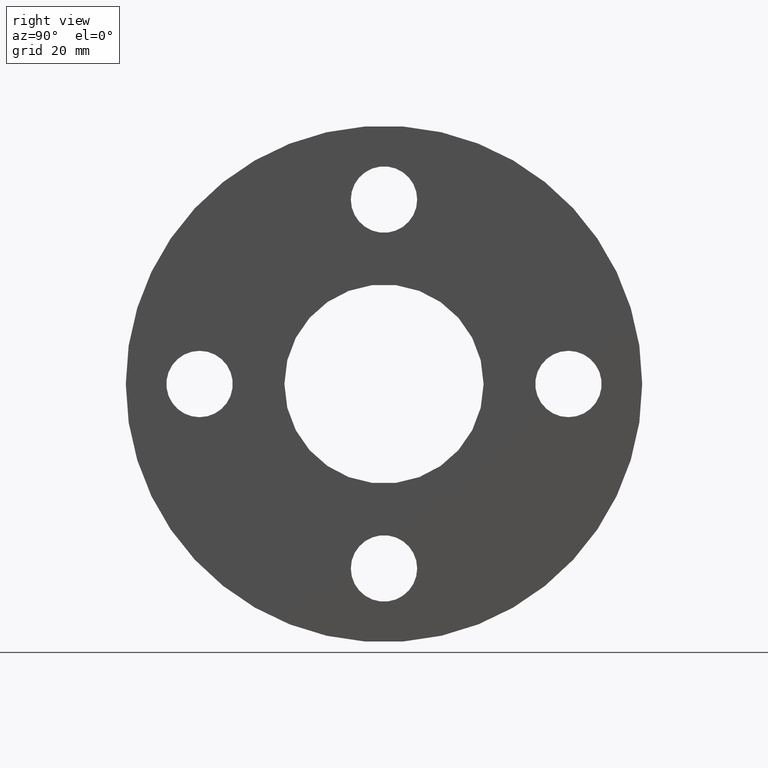
[diagram: clean part render]
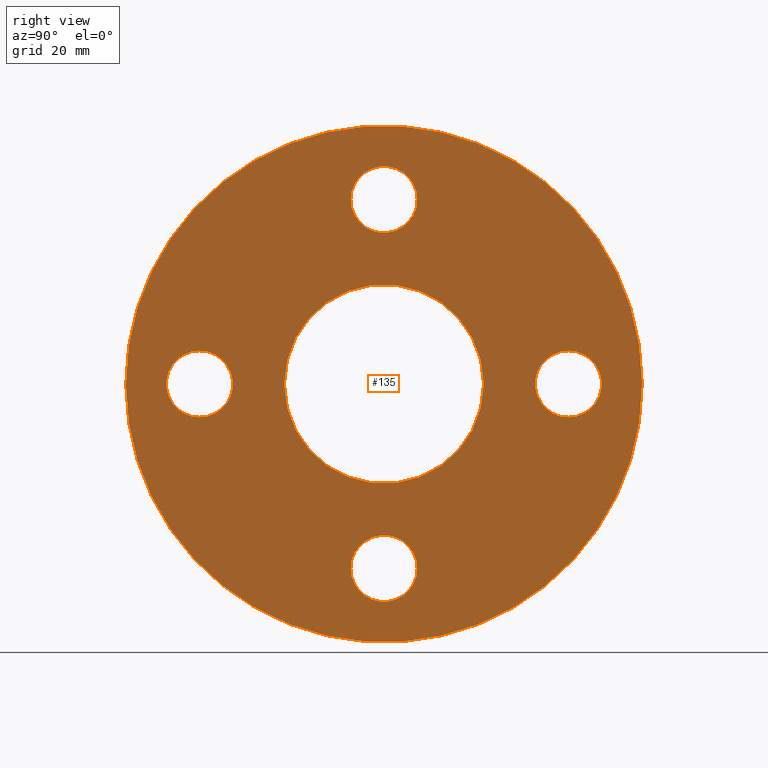
[diagram: same view with one face highlighted and labeled with its STEP entity id]
A machine part, right view. The second image highlights one B-rep face of the part: STEP entity #135.
In plain terms, the highlighted planar face has unit normal (1, 0, 0).
Its self-contained STEP definition (entity closure, byte-faithful):
#16=PLANE('',#153);
#22=FACE_BOUND('',#51,.T.);
#23=FACE_BOUND('',#52,.T.);
#24=FACE_BOUND('',#53,.T.);
#25=FACE_BOUND('',#54,.T.);
#26=FACE_BOUND('',#55,.T.);
#38=FACE_OUTER_BOUND('',#50,.T.);
#50=EDGE_LOOP('',(#110));
#51=EDGE_LOOP('',(#111));
#52=EDGE_LOOP('',(#112));
#53=EDGE_LOOP('',(#113));
#54=EDGE_LOOP('',(#114));
#55=EDGE_LOOP('',(#115));
#67=CIRCLE('',#143,9.);
#69=CIRCLE('',#146,9.);
#71=CIRCLE('',#149,9.);
#73=CIRCLE('',#152,9.);
#74=CIRCLE('',#154,70.);
#75=CIRCLE('',#155,27.);
#79=VERTEX_POINT('',#207);
#81=VERTEX_POINT('',#212);
#83=VERTEX_POINT('',#217);
#85=VERTEX_POINT('',#222);
#86=VERTEX_POINT('',#225);
#87=VERTEX_POINT('',#227);
#91=EDGE_CURVE('',#79,#79,#67,.T.);
#93=EDGE_CURVE('',#81,#81,#69,.T.);
#95=EDGE_CURVE('',#83,#83,#71,.T.);
#97=EDGE_CURVE('',#85,#85,#73,.T.);
#98=EDGE_CURVE('',#86,#86,#74,.T.);
#99=EDGE_CURVE('',#87,#87,#75,.T.);
#110=ORIENTED_EDGE('',*,*,#98,.F.);
#111=ORIENTED_EDGE('',*,*,#91,.T.);
#112=ORIENTED_EDGE('',*,*,#93,.T.);
#113=ORIENTED_EDGE('',*,*,#95,.T.);
#114=ORIENTED_EDGE('',*,*,#97,.T.);
#115=ORIENTED_EDGE('',*,*,#99,.T.);
#135=ADVANCED_FACE('',(#38,#22,#23,#24,#25,#26),#16,.T.);
#143=AXIS2_PLACEMENT_3D('',#208,#167,#168);
#146=AXIS2_PLACEMENT_3D('',#213,#173,#174);
#149=AXIS2_PLACEMENT_3D('',#218,#179,#180);
#152=AXIS2_PLACEMENT_3D('',#223,#185,#186);
#153=AXIS2_PLACEMENT_3D('',#224,#187,#188);
#154=AXIS2_PLACEMENT_3D('',#226,#189,#190);
#155=AXIS2_PLACEMENT_3D('',#228,#191,#192);
#167=DIRECTION('center_axis',(-1.,0.,0.));
#168=DIRECTION('ref_axis',(0.,-1.,-1.83697019872103E-16));
#173=DIRECTION('center_axis',(-1.,0.,0.));
#174=DIRECTION('ref_axis',(0.,1.22464679914735E-16,-1.));
#179=DIRECTION('center_axis',(-1.,0.,0.));
#180=DIRECTION('ref_axis',(0.,1.,6.12323399573677E-17));
#185=DIRECTION('center_axis',(-1.,0.,0.));
#186=DIRECTION('ref_axis',(0.,0.,1.));
#187=DIRECTION('center_axis',(1.,0.,0.));
#188=DIRECTION('ref_axis',(0.,0.,-1.));
#189=DIRECTION('center_axis',(-1.,0.,0.));
#190=DIRECTION('ref_axis',(0.,0.,1.));
#191=DIRECTION('center_axis',(-1.,0.,0.));
#192=DIRECTION('ref_axis',(0.,0.,1.));
#207=CARTESIAN_POINT('',(7.5,8.99999999999999,50.));
#208=CARTESIAN_POINT('Origin',(7.5,-9.18485099360515E-15,50.));
#212=CARTESIAN_POINT('',(7.5,-50.,8.99999999999999));
#213=CARTESIAN_POINT('Origin',(7.5,-50.,-6.12323399573677E-15));
#217=CARTESIAN_POINT('',(7.5,-9.,-50.));
#218=CARTESIAN_POINT('Origin',(7.5,3.06161699786838E-15,-50.));
#222=CARTESIAN_POINT('',(7.5,50.,-9.));
#223=CARTESIAN_POINT('Origin',(7.5,50.,0.));
#224=CARTESIAN_POINT('Origin',(7.5,-70.,0.));
#225=CARTESIAN_POINT('',(7.5,-70.,0.));
#226=CARTESIAN_POINT('Origin',(7.5,0.,0.));
#227=CARTESIAN_POINT('',(7.5,-27.,0.));
#228=CARTESIAN_POINT('Origin',(7.5,0.,0.));